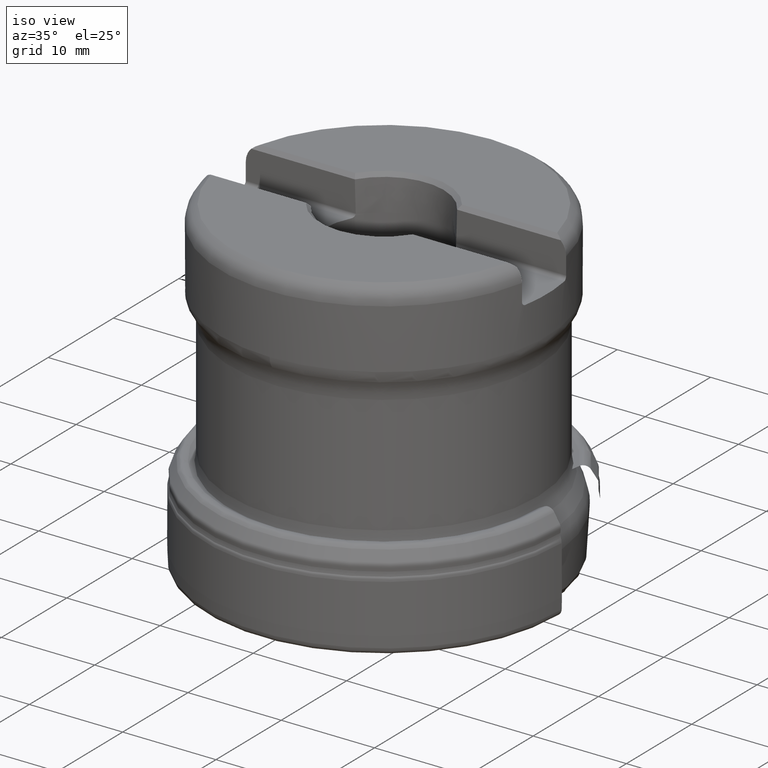
[diagram: clean part render]
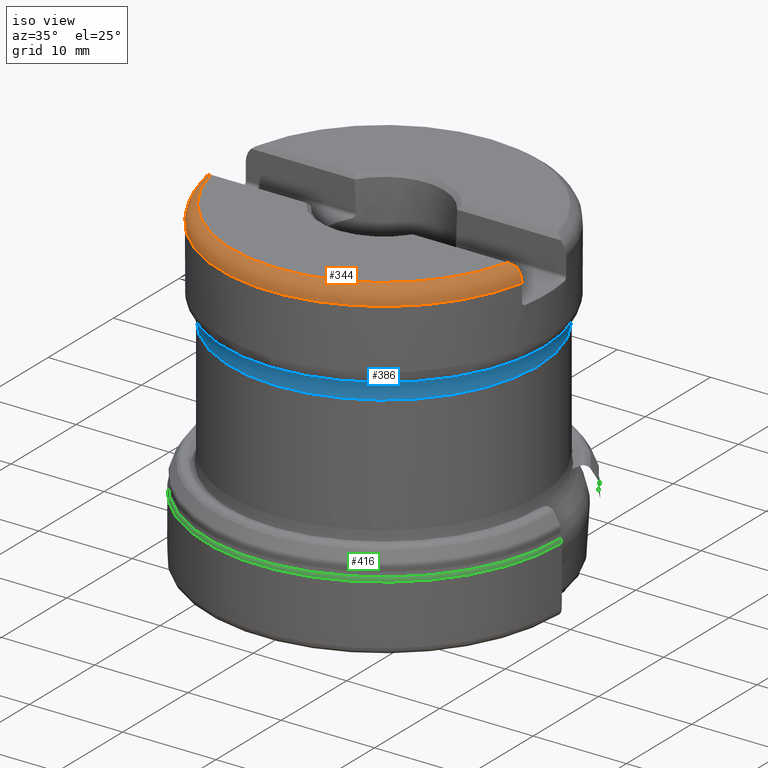
[diagram: same view with three faces highlighted in distinct colors, each labeled with its STEP entity id]
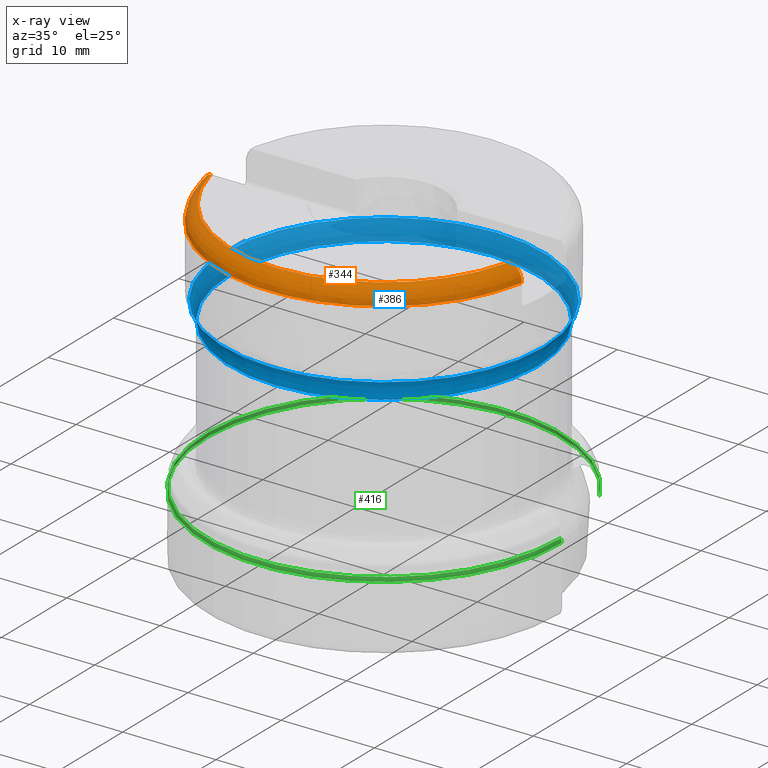
[diagram: x-ray of the same camera — body ghosted, the three highlighted faces saturated]
A machine part, iso view with three faces highlighted in distinct colors.
The next image is the same camera in x-ray (body ghosted, the three faces saturated) — at least one of them is partly hidden behind the body in this view.
Their STEP definitions:

[orange] entity #344 — the highlighted toroidal blend (fillet) surface has major radius 15.5 mm and minor (blend) radius 2 mm.
#344=ADVANCED_FACE('',(#463),#436,.T.);
#436=TOROIDAL_SURFACE('',#1717,15.5,2.);
#463=FACE_OUTER_BOUND('',#521,.T.);
#521=EDGE_LOOP('',(#685,#686,#687,#688,#689,#690));
#685=ORIENTED_EDGE('',*,*,#1253,.T.);
#686=ORIENTED_EDGE('',*,*,#1254,.T.);
#687=ORIENTED_EDGE('',*,*,#1255,.T.);
#688=ORIENTED_EDGE('',*,*,#1256,.T.);
#689=ORIENTED_EDGE('',*,*,#1257,.F.);
#690=ORIENTED_EDGE('',*,*,#1258,.T.);
#1089=VERTEX_POINT('',#2785);
#1090=VERTEX_POINT('',#2786);
#1091=VERTEX_POINT('',#2788);
#1092=VERTEX_POINT('',#2796);
#1093=VERTEX_POINT('',#2807);
#1094=VERTEX_POINT('',#2809);
#1253=EDGE_CURVE('',#1089,#1090,#1569,.T.);
#1254=EDGE_CURVE('',#1090,#1091,#1459,.T.);
#1255=EDGE_CURVE('',#1091,#1092,#1570,.T.);
#1256=EDGE_CURVE('',#1092,#1093,#1571,.T.);
#1257=EDGE_CURVE('',#1094,#1093,#1460,.T.);
#1258=EDGE_CURVE('',#1094,#1089,#1572,.T.);
#1459=CIRCLE('',#1715,16.3717797887081);
#1460=CIRCLE('',#1716,17.5);
#1569=B_SPLINE_CURVE_WITH_KNOTS('',3,(#2781,#2782,#2783,#2784),
 .UNSPECIFIED.,.F.,.F.,(4,4),(0.,1.),.UNSPECIFIED.);
#1570=B_SPLINE_CURVE_WITH_KNOTS('',3,(#2789,#2790,#2791,#2792,#2793,#2794,
#2795),.UNSPECIFIED.,.F.,.F.,(4,3,4),(0.,0.294531463096892,1.),
 .UNSPECIFIED.);
#1571=B_SPLINE_CURVE_WITH_KNOTS('',3,(#2797,#2798,#2799,#2800,#2801,#2802,
#2803,#2804,#2805,#2806),.UNSPECIFIED.,.F.,.F.,(4,3,3,4),(0.,0.374182280710266,
0.647469026716452,1.),.UNSPECIFIED.);
#1572=B_SPLINE_CURVE_WITH_KNOTS('',3,(#2810,#2811,#2812,#2813,#2814,#2815,
#2816,#2817,#2818,#2819,#2820,#2821,#2822),.UNSPECIFIED.,.F.,.F.,(4,3,3,
3,4),(0.,0.0340930651981371,0.46042381645352,0.886896201358956,1.),
 .UNSPECIFIED.);
#1715=AXIS2_PLACEMENT_3D('',#2787,#1927,#1928);
#1716=AXIS2_PLACEMENT_3D('',#2808,#1929,#1930);
#1717=AXIS2_PLACEMENT_3D('',#2823,#1931,#1932);
#1927=DIRECTION('',(0.,-1.17145536458252E-15,-1.));
#1928=DIRECTION('',(0.,-1.,1.27149778340405E-15));
#1929=DIRECTION('',(0.,-1.17145536458252E-15,-1.));
#1930=DIRECTION('',(0.,1.,-1.18952466924124E-15));
#1931=DIRECTION('',(0.,-1.17145536458252E-15,-1.));
#1932=DIRECTION('',(0.,1.,-1.18952466924124E-15));
#2781=CARTESIAN_POINT('',(16.5884366730862,-3.37499999999996,34.5250000000007));
#2782=CARTESIAN_POINT('',(16.4009878731763,-3.53072298113499,34.6807229811357));
#2783=CARTESIAN_POINT('',(16.1786550454942,-3.66984933289201,34.8198493328921));
#2784=CARTESIAN_POINT('',(15.9306167002563,-3.77499999999995,34.925));
#2785=CARTESIAN_POINT('',(16.5884366730862,-3.37499999999996,34.5250000000007));
#2786=CARTESIAN_POINT('',(15.9306167002563,-3.77499999999995,34.925));
#2787=CARTESIAN_POINT('',(0.,4.09130786080447E-14,34.925));
#2788=CARTESIAN_POINT('',(-15.9306167002537,-3.77499999999995,34.925));
#2789=CARTESIAN_POINT('',(-15.9306167002537,-3.77499999999995,34.925));
#2790=CARTESIAN_POINT('',(-16.0039228410428,-3.74392339529324,34.8939233952933));
#2791=CARTESIAN_POINT('',(-16.074887028441,-3.70993707384269,34.8599370738427));
#2792=CARTESIAN_POINT('',(-16.1431560658654,-3.67357335891471,34.8235733589148));
#2793=CARTESIAN_POINT('',(-16.3065381947867,-3.58654736024004,34.7365473602401));
#2794=CARTESIAN_POINT('',(-16.4558545507178,-3.48514252078551,34.6351425207856));
#2795=CARTESIAN_POINT('',(-16.5884366730855,-3.37499999999996,34.525));
#2796=CARTESIAN_POINT('',(-16.5884366730855,-3.37499999999996,34.525));
#2797=CARTESIAN_POINT('',(-16.5884366730855,-3.37499999999996,34.525));
#2798=CARTESIAN_POINT('',(-16.7249398272885,-3.37499999999996,34.388534706257));
#2799=CARTESIAN_POINT('',(-16.8428545641574,-3.37499999999996,34.2306159887633));
#2800=CARTESIAN_POINT('',(-16.9345425767085,-3.37499999999996,34.0607654784368));
#2801=CARTESIAN_POINT('',(-17.0021000361325,-3.37499999999996,33.9356164143417));
#2802=CARTESIAN_POINT('',(-17.0564406631486,-3.37499999999996,33.8023926539613));
#2803=CARTESIAN_POINT('',(-17.0955733705473,-3.37499999999996,33.665663250469));
#2804=CARTESIAN_POINT('',(-17.1456487997607,-3.37499999999996,33.4907000541787));
#2805=CARTESIAN_POINT('',(-17.1714697973121,-3.37499999999996,33.3069881003446));
#2806=CARTESIAN_POINT('',(-17.1714697973121,-3.37499999999996,33.125));
#2807=CARTESIAN_POINT('',(-17.1714697973121,-3.37499999999996,33.125));
#2808=CARTESIAN_POINT('',(0.,3.88044589517961E-14,33.125));
#2809=CARTESIAN_POINT('',(17.1714697973121,-3.37499999999996,33.125));
#2810=CARTESIAN_POINT('',(17.1714697973121,-3.37499999999996,33.125));
#2811=CARTESIAN_POINT('',(17.1714697973121,-3.37499999999996,33.1428045002801));
#2812=CARTESIAN_POINT('',(17.1712274520727,-3.37499999999996,33.1606106489361));
#2813=CARTESIAN_POINT('',(17.1707429050858,-3.37499999999996,33.1784085545556));
#2814=CARTESIAN_POINT('',(17.1647562798337,-3.37499999999996,33.3983034132524));
#2815=CARTESIAN_POINT('',(17.1206384836382,-3.37499999999996,33.6201700739422));
#2816=CARTESIAN_POINT('',(17.0422604039727,-3.37499999999996,33.8257095231755));
#2817=CARTESIAN_POINT('',(16.9638404266822,-3.37499999999996,34.0313588451539));
#2818=CARTESIAN_POINT('',(16.8490385082794,-3.37499999999996,34.2262597399976));
#2819=CARTESIAN_POINT('',(16.7076243400277,-3.37499999999996,34.3949113616503));
#2820=CARTESIAN_POINT('',(16.6698371604397,-3.37499999999996,34.4399766418409));
#2821=CARTESIAN_POINT('',(16.6300281978872,-3.37499999999996,34.4834200110084));
#2822=CARTESIAN_POINT('',(16.5884366730862,-3.37499999999996,34.5250000000007));
#2823=CARTESIAN_POINT('',(0.,3.88044589517961E-14,33.125));

[blue] entity #386 — the highlighted toroidal blend (fillet) surface has major radius 20 mm and minor (blend) radius 3.5 mm.
#214=FACE_BOUND('',#583,.T.);
#215=FACE_BOUND('',#584,.T.);
#386=ADVANCED_FACE('',(#214,#215),#444,.F.);
#444=TOROIDAL_SURFACE('',#1805,20.,3.5);
#583=EDGE_LOOP('',(#881));
#584=EDGE_LOOP('',(#882));
#881=ORIENTED_EDGE('',*,*,#1307,.F.);
#882=ORIENTED_EDGE('',*,*,#1291,.F.);
#1117=VERTEX_POINT('',#2958);
#1129=VERTEX_POINT('',#3112);
#1291=EDGE_CURVE('',#1117,#1117,#1469,.T.);
#1307=EDGE_CURVE('',#1129,#1129,#1479,.T.);
#1469=CIRCLE('',#1737,16.5);
#1479=CIRCLE('',#1755,17.1363636363637);
#1737=AXIS2_PLACEMENT_3D('',#2957,#1983,#1984);
#1755=AXIS2_PLACEMENT_3D('',#3111,#2019,#2020);
#1805=AXIS2_PLACEMENT_3D('',#3445,#2127,#2128);
#1983=DIRECTION('',(0.,-1.17145536458252E-15,-1.));
#1984=DIRECTION('',(0.,1.,-1.26161707343768E-15));
#2019=DIRECTION('',(0.,1.17145536458252E-15,1.));
#2020=DIRECTION('',(0.,-1.,1.21476657203681E-15));
#2127=DIRECTION('',(0.,-1.17145536458252E-15,-1.));
#2128=DIRECTION('',(0.,1.,-1.18108832406932E-15));
#2957=CARTESIAN_POINT('',(0.,2.76359785969478E-14,23.5911494645778));
#2958=CARTESIAN_POINT('',(0.,16.5,23.5911494645778));
#3111=CARTESIAN_POINT('',(0.,2.99933667701411E-14,25.603507975594));
#3112=CARTESIAN_POINT('',(0.,-17.1363636363636,25.6035079755941));
#3445=CARTESIAN_POINT('',(0.,2.76359785969478E-14,23.5911494645778));

[green] entity #416 — the highlighted face is a SurfaceOfRevolution surface.
#118=SURFACE_OF_REVOLUTION('',#1643,#141);
#141=AXIS1_PLACEMENT('',#3920,#2219);
#416=ADVANCED_FACE('',(#498),#118,.F.);
#498=FACE_OUTER_BOUND('',#630,.T.);
#630=EDGE_LOOP('',(#999,#1000,#1001,#1002));
#999=ORIENTED_EDGE('',*,*,#1403,.T.);
#1000=ORIENTED_EDGE('',*,*,#1402,.F.);
#1001=ORIENTED_EDGE('',*,*,#1404,.T.);
#1002=ORIENTED_EDGE('',*,*,#1405,.T.);
#1187=VERTEX_POINT('',#3859);
#1188=VERTEX_POINT('',#3866);
#1189=VERTEX_POINT('',#3889);
#1190=VERTEX_POINT('',#3904);
#1402=EDGE_CURVE('',#1188,#1187,#1516,.T.);
#1403=EDGE_CURVE('',#1189,#1187,#1641,.T.);
#1404=EDGE_CURVE('',#1188,#1190,#1642,.T.);
#1405=EDGE_CURVE('',#1190,#1189,#1517,.T.);
#1516=CIRCLE('',#1844,19.0586698546054);
#1517=CIRCLE('',#1845,18.9817285453019);
#1641=B_SPLINE_CURVE_WITH_KNOTS('',5,(#3875,#3876,#3877,#3878,#3879,#3880,
#3881,#3882,#3883,#3884,#3885,#3886,#3887,#3888),.UNSPECIFIED.,.F.,.F.,
(6,1,1,1,1,1,1,1,1,6),(0.,0.206640617522201,0.34507583989268,0.413260352403513,
0.499959894150478,0.566632295910548,0.619963689730252,0.688176685272624,
0.82666973682835,1.),.UNSPECIFIED.);
#1642=B_SPLINE_CURVE_WITH_KNOTS('',5,(#3890,#3891,#3892,#3893,#3894,#3895,
#3896,#3897,#3898,#3899,#3900,#3901,#3902,#3903),.UNSPECIFIED.,.F.,.F.,
(6,1,1,1,1,1,1,1,1,6),(0.,0.17333026317165,0.311823314727376,0.380036310269748,
0.433367704089452,0.500040105849522,0.586739647596487,0.65492416010732,
0.793359382477799,1.),.UNSPECIFIED.);
#1643=B_SPLINE_CURVE_WITH_KNOTS('',5,(#3906,#3907,#3908,#3909,#3910,#3911,
#3912,#3913,#3914,#3915,#3916,#3917,#3918,#3919),.UNSPECIFIED.,.F.,.F.,
(6,1,1,1,1,1,1,1,1,6),(0.,0.17333026317165,0.311823314727376,0.380036310269748,
0.433367704089452,0.500040105849522,0.586739647596487,0.65492416010732,
0.793359382477799,1.),.UNSPECIFIED.);
#1844=AXIS2_PLACEMENT_3D('',#3867,#2214,#2215);
#1845=AXIS2_PLACEMENT_3D('',#3905,#2217,#2218);
#2214=DIRECTION('',(0.,0.,-1.));
#2215=DIRECTION('',(-1.,0.,0.));
#2217=DIRECTION('',(0.,0.,-1.));
#2218=DIRECTION('',(-1.,0.,0.));
#2219=DIRECTION('',(0.,0.,-1.));
#3859=CARTESIAN_POINT('',(16.5052922564289,9.52933492730278,7.14467338801975));
#3866=CARTESIAN_POINT('',(19.0586698546054,-1.73472347597681E-15,7.14467338801975));
#3867=CARTESIAN_POINT('',(0.,0.,7.14467338801975));
#3875=CARTESIAN_POINT('',(16.4386627058128,9.49086633831859,7.60504700536958));
#3876=CARTESIAN_POINT('',(16.4431037028703,9.4934303491652,7.58628498313883));
#3877=CARTESIAN_POINT('',(16.4503467197681,9.49761210692091,7.55489925888964));
#3878=CARTESIAN_POINT('',(16.4586425490618,9.50240170619675,7.51721041788082));
#3879=CARTESIAN_POINT('',(16.4679892694559,9.50779803773231,7.47146471812075));
#3880=CARTESIAN_POINT('',(16.477448949277,9.51325958642348,7.41942868071617));
#3881=CARTESIAN_POINT('',(16.4836760006175,9.51685477619122,7.38137659057749));
#3882=CARTESIAN_POINT('',(16.4883816243356,9.51957156931154,7.34973300015056));
#3883=CARTESIAN_POINT('',(16.4934552911285,9.52250085220023,7.31154149070381));
#3884=CARTESIAN_POINT('',(16.4986711201713,9.5255122125021,7.26526246832372));
#3885=CARTESIAN_POINT('',(16.5020727587468,9.52747614944938,7.22506974020263));
#3886=CARTESIAN_POINT('',(16.5040545328178,9.52862032724276,7.18977334038704));
#3887=CARTESIAN_POINT('',(16.5050044226286,9.52916874638072,7.16078988518309));
#3888=CARTESIAN_POINT('',(16.5052923040817,9.52933495481513,7.14467338921158));
#3889=CARTESIAN_POINT('',(16.4386591279716,9.49086427265101,7.60504977588096));
#3890=CARTESIAN_POINT('',(19.0586699096301,0.,7.14467338921158));
#3891=CARTESIAN_POINT('',(19.0583374927613,2.48759914055944E-31,7.16078988518309));
#3892=CARTESIAN_POINT('',(19.0572406544853,7.29003744207779E-31,7.18977334038704));
#3893=CARTESIAN_POINT('',(19.0549522988986,-3.47247707297857E-16,7.22506974020263));
#3894=CARTESIAN_POINT('',(19.051024425004,-5.99372050513961E-16,7.26526246832372));
#3895=CARTESIAN_POINT('',(19.0450017044003,-1.09606378461542E-15,7.31154149070381));
#3896=CARTESIAN_POINT('',(19.0391431386229,-1.49037391631923E-15,7.34973300015056));
#3897=CARTESIAN_POINT('',(19.0337095523823,-1.84386740731281E-15,7.38137659057749));
#3898=CARTESIAN_POINT('',(19.0265191728468,-2.25161773010388E-15,7.41942868071617));
#3899=CARTESIAN_POINT('',(19.0155960754645,-2.82333537500209E-15,7.47146471812075));
#3900=CARTESIAN_POINT('',(19.0048034123933,-3.17325968246148E-15,7.51721041788082));
#3901=CARTESIAN_POINT('',(18.9952242138417,-3.46944695195361E-15,7.55489925888964));
#3902=CARTESIAN_POINT('',(18.9868606983302,-3.46944695195361E-15,7.58628498313883));
#3903=CARTESIAN_POINT('',(18.981732676637,-3.46944695195361E-15,7.60504700536958));
#3904=CARTESIAN_POINT('',(18.9817285453019,-1.73472347597681E-15,7.60504977588096));
#3905=CARTESIAN_POINT('',(0.,0.,7.60504977588096));
#3906=CARTESIAN_POINT('',(19.0586699096301,0.,7.14467338921158));
#3907=CARTESIAN_POINT('',(19.0583374927613,2.48759914055944E-31,7.16078988518309));
#3908=CARTESIAN_POINT('',(19.0572406544853,7.29003744207779E-31,7.18977334038704));
#3909=CARTESIAN_POINT('',(19.0549522988986,-3.47247707297857E-16,7.22506974020263));
#3910=CARTESIAN_POINT('',(19.051024425004,-5.99372050513961E-16,7.26526246832372));
#3911=CARTESIAN_POINT('',(19.0450017044003,-1.09606378461542E-15,7.31154149070381));
#3912=CARTESIAN_POINT('',(19.0391431386229,-1.49037391631923E-15,7.34973300015056));
#3913=CARTESIAN_POINT('',(19.0337095523823,-1.84386740731281E-15,7.38137659057749));
#3914=CARTESIAN_POINT('',(19.0265191728468,-2.25161773010388E-15,7.41942868071617));
#3915=CARTESIAN_POINT('',(19.0155960754645,-2.82333537500209E-15,7.47146471812075));
#3916=CARTESIAN_POINT('',(19.0048034123933,-3.17325968246148E-15,7.51721041788082));
#3917=CARTESIAN_POINT('',(18.9952242138417,-3.46944695195361E-15,7.55489925888964));
#3918=CARTESIAN_POINT('',(18.9868606983302,-3.46944695195361E-15,7.58628498313883));
#3919=CARTESIAN_POINT('',(18.981732676637,-3.46944695195361E-15,7.60504700536958));
#3920=CARTESIAN_POINT('',(0.,0.,0.));